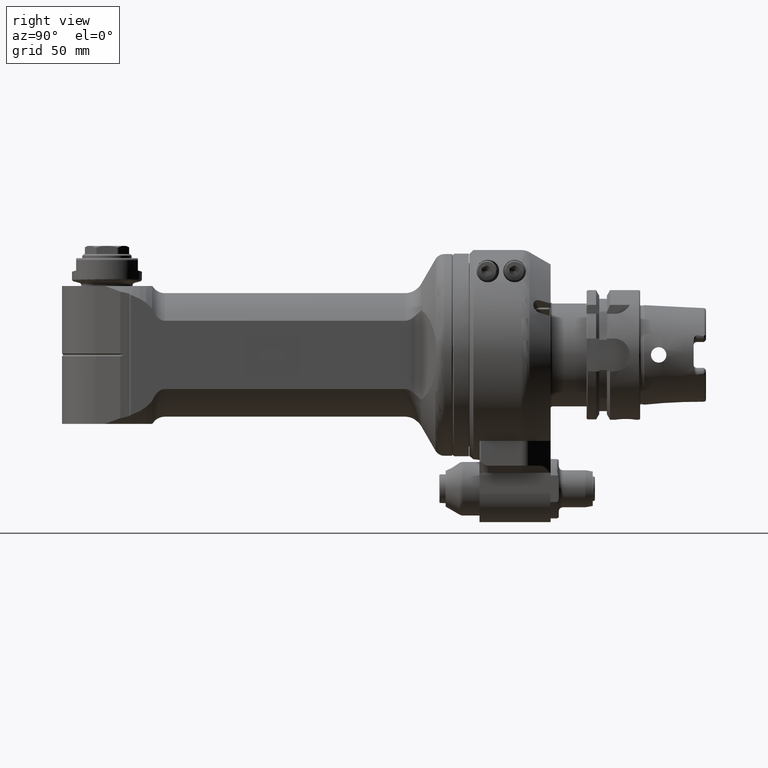
[diagram: clean part render]
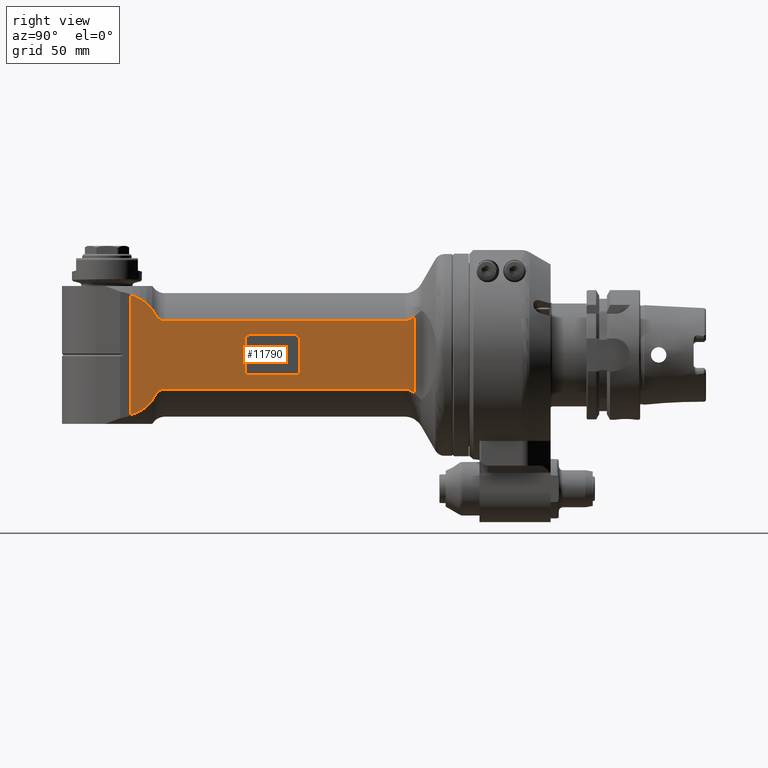
[diagram: same view with one face highlighted and labeled with its STEP entity id]
A machine part, right view. The second image highlights one B-rep face of the part: STEP entity #11790.
In plain terms, the highlighted planar face has unit normal (-1, -0, 0).
Its self-contained STEP definition (entity closure, byte-faithful):
#191=FACE_BOUND('',#1969,.T.);
#368=(
BOUNDED_CURVE()
B_SPLINE_CURVE(2,(#49864,#49865,#49866),.UNSPECIFIED.,.F.,.F.)
B_SPLINE_CURVE_WITH_KNOTS((3,3),(10.0637577830066,10.2536930074306),
 .UNSPECIFIED.)
CURVE()
GEOMETRIC_REPRESENTATION_ITEM()
RATIONAL_B_SPLINE_CURVE((1.02844065811263,1.01886281109246,1.00891330450997))
REPRESENTATION_ITEM('')
);
#369=(
BOUNDED_CURVE()
B_SPLINE_CURVE(2,(#49900,#49901,#49902),.UNSPECIFIED.,.F.,.F.)
B_SPLINE_CURVE_WITH_KNOTS((3,3),(-0.960297379361328,-0.670919033042132),
 .UNSPECIFIED.)
CURVE()
GEOMETRIC_REPRESENTATION_ITEM()
RATIONAL_B_SPLINE_CURVE((1.13764762922124,1.11967832254846,1.10003944085623))
REPRESENTATION_ITEM('')
);
#370=(
BOUNDED_CURVE()
B_SPLINE_CURVE(2,(#49903,#49904,#49905),.UNSPECIFIED.,.F.,.F.)
B_SPLINE_CURVE_WITH_KNOTS((3,3),(-0.533323682263184,-0.318404964314487),
 .UNSPECIFIED.)
CURVE()
GEOMETRIC_REPRESENTATION_ITEM()
RATIONAL_B_SPLINE_CURVE((1.06662190059773,1.05407085977907,1.04081653667434))
REPRESENTATION_ITEM('')
);
#371=(
BOUNDED_CURVE()
B_SPLINE_CURVE(2,(#49907,#49908,#49909),.UNSPECIFIED.,.F.,.F.)
B_SPLINE_CURVE_WITH_KNOTS((3,3),(0.177103908478262,0.209806670195023),
 .UNSPECIFIED.)
CURVE()
GEOMETRIC_REPRESENTATION_ITEM()
RATIONAL_B_SPLINE_CURVE((1.01355669587388,1.01479304768894,1.01602375273303))
REPRESENTATION_ITEM('')
);
#372=(
BOUNDED_CURVE()
B_SPLINE_CURVE(2,(#49913,#49914,#49915),.UNSPECIFIED.,.F.,.F.)
B_SPLINE_CURVE_WITH_KNOTS((3,3),(14.464839871622,14.4975426333388),
 .UNSPECIFIED.)
CURVE()
GEOMETRIC_REPRESENTATION_ITEM()
RATIONAL_B_SPLINE_CURVE((1.01602375273387,1.01479304768978,1.01355669587472))
REPRESENTATION_ITEM('')
);
#373=(
BOUNDED_CURVE()
B_SPLINE_CURVE(2,(#49917,#49918,#49919),.UNSPECIFIED.,.F.,.F.)
B_SPLINE_CURVE_WITH_KNOTS((3,3),(-10.2525112846873,-10.0625915574747),
 .UNSPECIFIED.)
CURVE()
GEOMETRIC_REPRESENTATION_ITEM()
RATIONAL_B_SPLINE_CURVE((1.00887622100963,1.0188253618892,1.02840285686713))
REPRESENTATION_ITEM('')
);
#374=(
BOUNDED_CURVE()
B_SPLINE_CURVE(2,(#49921,#49922,#49923),.UNSPECIFIED.,.F.,.F.)
B_SPLINE_CURVE_WITH_KNOTS((3,3),(-8.41806859416717,-8.20317088364644),
 .UNSPECIFIED.)
CURVE()
GEOMETRIC_REPRESENTATION_ITEM()
RATIONAL_B_SPLINE_CURVE((1.04076228631506,1.05401591856663,1.06656630518917))
REPRESENTATION_ITEM('')
);
#375=(
BOUNDED_CURVE()
B_SPLINE_CURVE(2,(#49925,#49926,#49927),.UNSPECIFIED.,.F.,.F.)
B_SPLINE_CURVE_WITH_KNOTS((3,3),(-7.47739673768606,-7.18805151553073),
 .UNSPECIFIED.)
CURVE()
GEOMETRIC_REPRESENTATION_ITEM()
RATIONAL_B_SPLINE_CURVE((1.09995595879571,1.11959335009201,1.137561293073))
REPRESENTATION_ITEM('')
);
#621=PLANE('',#12929);
#1272=FACE_OUTER_BOUND('',#1968,.T.);
#1968=EDGE_LOOP('',(#9918,#9919,#9920,#9921,#9922,#9923,#9924,#9925,#9926,
#9927,#9928,#9929,#9930,#9931,#9932,#9933));
#1969=EDGE_LOOP('',(#9934,#9935,#9936,#9937,#9938,#9939,#9940,#9941));
#2573=CIRCLE('',#12930,2.);
#2574=CIRCLE('',#12931,2.);
#2575=CIRCLE('',#12932,2.);
#2576=CIRCLE('',#12933,2.);
#2846=B_SPLINE_CURVE_WITH_KNOTS('',3,(#49874,#49875,#49876,#49877,#49878,
#49879,#49880,#49881),.UNSPECIFIED.,.F.,.F.,(4,2,2,4),(-3.1423743118532,
-3.00882891197884,-2.85940536172762,-2.68007420423771),.UNSPECIFIED.);
#2847=B_SPLINE_CURVE_WITH_KNOTS('',3,(#49885,#49886,#49887,#49888,#49889,
#49890,#49891,#49892,#49893,#49894,#49895,#49896,#49897,#49898),
 .UNSPECIFIED.,.F.,.F.,(4,2,2,2,2,2,4),(-3.32581351684061,-3.21328851460941,
-3.0207654607387,-2.86863153258841,-2.71649760443812,-2.60114781955608,
-2.49776209313838),.UNSPECIFIED.);
#2848=B_SPLINE_CURVE_WITH_KNOTS('',3,(#49929,#49930,#49931,#49932,#49933,
#49934,#49935,#49936,#49937,#49938,#49939,#49940,#49941,#49942),
 .UNSPECIFIED.,.F.,.F.,(4,2,2,2,2,2,4),(-2.49776209313838,-2.39437636672067,
-2.27902658183863,-2.12689265368834,-1.97475872553806,-1.78223567166734,
-1.66971066944646),.UNSPECIFIED.);
#2849=B_SPLINE_CURVE_WITH_KNOTS('',3,(#49945,#49946,#49947,#49948,#49949,
#49950,#49951,#49952),.UNSPECIFIED.,.F.,.F.,(4,2,2,4),(-3.60467441945762,
-3.42534326197877,-3.27591971172755,-3.1423743118532),.UNSPECIFIED.);
#3386=LINE('',#49872,#4284);
#3387=LINE('',#49883,#4285);
#3388=LINE('',#49911,#4286);
#3389=LINE('',#49944,#4287);
#3390=LINE('',#49955,#4288);
#3391=LINE('',#49959,#4289);
#3392=LINE('',#49963,#4290);
#3393=LINE('',#49967,#4291);
#4284=VECTOR('',#15451,37.09647208314);
#4285=VECTOR('',#15452,116.7720146362);
#4286=VECTOR('',#15453,10.);
#4287=VECTOR('',#15454,116.7720146362);
#4288=VECTOR('',#15455,22.5);
#4289=VECTOR('',#15458,15.5);
#4290=VECTOR('',#15461,22.5);
#4291=VECTOR('',#15464,15.5);
#5424=VERTEX_POINT('',#49862);
#5425=VERTEX_POINT('',#49863);
#5426=VERTEX_POINT('',#49870);
#5427=VERTEX_POINT('',#49871);
#5428=VERTEX_POINT('',#49873);
#5429=VERTEX_POINT('',#49882);
#5430=VERTEX_POINT('',#49884);
#5431=VERTEX_POINT('',#49899);
#5432=VERTEX_POINT('',#49906);
#5433=VERTEX_POINT('',#49910);
#5434=VERTEX_POINT('',#49912);
#5435=VERTEX_POINT('',#49916);
#5436=VERTEX_POINT('',#49920);
#5437=VERTEX_POINT('',#49924);
#5438=VERTEX_POINT('',#49928);
#5439=VERTEX_POINT('',#49943);
#5440=VERTEX_POINT('',#49953);
#5441=VERTEX_POINT('',#49954);
#5442=VERTEX_POINT('',#49956);
#5443=VERTEX_POINT('',#49958);
#5444=VERTEX_POINT('',#49960);
#5445=VERTEX_POINT('',#49962);
#5446=VERTEX_POINT('',#49964);
#5447=VERTEX_POINT('',#49966);
#7048=EDGE_CURVE('',#5424,#5425,#368,.T.);
#7051=EDGE_CURVE('',#5426,#5427,#3386,.T.);
#7052=EDGE_CURVE('',#5428,#5426,#2846,.T.);
#7053=EDGE_CURVE('',#5429,#5428,#3387,.T.);
#7054=EDGE_CURVE('',#5430,#5429,#2847,.T.);
#7055=EDGE_CURVE('',#5430,#5431,#369,.T.);
#7056=EDGE_CURVE('',#5431,#5424,#370,.T.);
#7057=EDGE_CURVE('',#5432,#5425,#371,.T.);
#7058=EDGE_CURVE('',#5432,#5433,#3388,.T.);
#7059=EDGE_CURVE('',#5434,#5433,#372,.T.);
#7060=EDGE_CURVE('',#5434,#5435,#373,.T.);
#7061=EDGE_CURVE('',#5435,#5436,#374,.T.);
#7062=EDGE_CURVE('',#5436,#5437,#375,.T.);
#7063=EDGE_CURVE('',#5438,#5437,#2848,.T.);
#7064=EDGE_CURVE('',#5439,#5438,#3389,.T.);
#7065=EDGE_CURVE('',#5427,#5439,#2849,.T.);
#7066=EDGE_CURVE('',#5440,#5441,#3390,.T.);
#7067=EDGE_CURVE('',#5441,#5442,#2573,.T.);
#7068=EDGE_CURVE('',#5442,#5443,#3391,.T.);
#7069=EDGE_CURVE('',#5443,#5444,#2574,.T.);
#7070=EDGE_CURVE('',#5444,#5445,#3392,.T.);
#7071=EDGE_CURVE('',#5445,#5446,#2575,.T.);
#7072=EDGE_CURVE('',#5446,#5447,#3393,.T.);
#7073=EDGE_CURVE('',#5447,#5440,#2576,.T.);
#9918=ORIENTED_EDGE('',*,*,#7051,.F.);
#9919=ORIENTED_EDGE('',*,*,#7052,.F.);
#9920=ORIENTED_EDGE('',*,*,#7053,.F.);
#9921=ORIENTED_EDGE('',*,*,#7054,.F.);
#9922=ORIENTED_EDGE('',*,*,#7055,.T.);
#9923=ORIENTED_EDGE('',*,*,#7056,.T.);
#9924=ORIENTED_EDGE('',*,*,#7048,.T.);
#9925=ORIENTED_EDGE('',*,*,#7057,.F.);
#9926=ORIENTED_EDGE('',*,*,#7058,.T.);
#9927=ORIENTED_EDGE('',*,*,#7059,.F.);
#9928=ORIENTED_EDGE('',*,*,#7060,.T.);
#9929=ORIENTED_EDGE('',*,*,#7061,.T.);
#9930=ORIENTED_EDGE('',*,*,#7062,.T.);
#9931=ORIENTED_EDGE('',*,*,#7063,.F.);
#9932=ORIENTED_EDGE('',*,*,#7064,.F.);
#9933=ORIENTED_EDGE('',*,*,#7065,.F.);
#9934=ORIENTED_EDGE('',*,*,#7066,.T.);
#9935=ORIENTED_EDGE('',*,*,#7067,.T.);
#9936=ORIENTED_EDGE('',*,*,#7068,.T.);
#9937=ORIENTED_EDGE('',*,*,#7069,.T.);
#9938=ORIENTED_EDGE('',*,*,#7070,.T.);
#9939=ORIENTED_EDGE('',*,*,#7071,.T.);
#9940=ORIENTED_EDGE('',*,*,#7072,.T.);
#9941=ORIENTED_EDGE('',*,*,#7073,.T.);
#11790=ADVANCED_FACE('',(#1272,#191),#621,.F.);
#12929=AXIS2_PLACEMENT_3D('',#49869,#15449,#15450);
#12930=AXIS2_PLACEMENT_3D('',#49957,#15456,#15457);
#12931=AXIS2_PLACEMENT_3D('',#49961,#15459,#15460);
#12932=AXIS2_PLACEMENT_3D('',#49965,#15462,#15463);
#12933=AXIS2_PLACEMENT_3D('',#49968,#15465,#15466);
#15449=DIRECTION('center_axis',(0.,0.,-1.));
#15450=DIRECTION('ref_axis',(1.,0.,0.));
#15451=DIRECTION('',(2.473728340467E-12,1.,-1.85026835222E-13));
#15452=DIRECTION('',(-1.,0.,0.));
#15453=DIRECTION('',(0.,1.,0.));
#15454=DIRECTION('',(1.,0.,0.));
#15455=DIRECTION('',(-1.,0.,0.));
#15456=DIRECTION('center_axis',(0.,0.,-1.));
#15457=DIRECTION('ref_axis',(0.,-1.,0.));
#15458=DIRECTION('',(0.,1.,0.));
#15459=DIRECTION('center_axis',(0.,0.,-1.));
#15460=DIRECTION('ref_axis',(-1.,0.,0.));
#15461=DIRECTION('',(1.,0.,0.));
#15462=DIRECTION('center_axis',(0.,0.,-1.));
#15463=DIRECTION('ref_axis',(0.,1.,0.));
#15464=DIRECTION('',(0.,-1.,0.));
#15465=DIRECTION('center_axis',(0.,0.,-1.));
#15466=DIRECTION('ref_axis',(1.,0.,0.));
#49862=CARTESIAN_POINT('',(164.073056574352,-27.2763634946847,24.9999999690271));
#49863=CARTESIAN_POINT('',(167.766276708277,-28.8832131299147,24.9999999959781));
#49864=CARTESIAN_POINT('Ctrl Pts',(164.073056589615,-27.2763634604013,25.));
#49865=CARTESIAN_POINT('Ctrl Pts',(165.866831052153,-28.066967685871,25.));
#49866=CARTESIAN_POINT('Ctrl Pts',(167.766276708876,-28.8832131285599,25.));
#49869=CARTESIAN_POINT('Origin',(118.0000000447,-58.8000024,25.));
#49870=CARTESIAN_POINT('',(30.80083019716,-18.54823604161,25.00000000003));
#49871=CARTESIAN_POINT('',(30.80083019725,18.54823604153,25.00000000002));
#49872=CARTESIAN_POINT('',(30.80083019716,-18.54823604161,25.00000000003));
#49873=CARTESIAN_POINT('',(35.16580758197,-16.58312395178,25.));
#49874=CARTESIAN_POINT('Ctrl Pts',(35.16580758197,-16.583123951777,25.));
#49875=CARTESIAN_POINT('Ctrl Pts',(34.7206562490555,-16.583123951777,25.));
#49876=CARTESIAN_POINT('Ctrl Pts',(34.1920196550243,-16.6598919965139,25.));
#49877=CARTESIAN_POINT('Ctrl Pts',(33.2844305992261,-16.9167277905047,25.));
#49878=CARTESIAN_POINT('Ctrl Pts',(32.7382766269785,-17.1595326432425,25.));
#49879=CARTESIAN_POINT('Ctrl Pts',(31.7927287076695,-17.7134498027941,25.));
#49880=CARTESIAN_POINT('Ctrl Pts',(31.2768824717342,-18.1051437661404,25.));
#49881=CARTESIAN_POINT('Ctrl Pts',(30.8008301971795,-18.5482360416309,25.));
#49882=CARTESIAN_POINT('',(151.9378222182,-16.58312395178,25.));
#49883=CARTESIAN_POINT('',(151.9378222182,-16.58312395178,25.));
#49884=CARTESIAN_POINT('',(158.000000321429,-22.2991037344406,24.9999998483583));
#49885=CARTESIAN_POINT('Ctrl Pts',(158.000000285725,-22.2991037481623,25.));
#49886=CARTESIAN_POINT('Ctrl Pts',(157.857028091733,-21.9270808407598,25.));
#49887=CARTESIAN_POINT('Ctrl Pts',(157.693594692223,-21.5500745930633,25.));
#49888=CARTESIAN_POINT('Ctrl Pts',(157.203602538318,-20.5518000895077,25.));
#49889=CARTESIAN_POINT('Ctrl Pts',(156.841829587104,-19.9481759632981,25.));
#49890=CARTESIAN_POINT('Ctrl Pts',(156.168421551287,-19.0173735566936,25.));
#49891=CARTESIAN_POINT('Ctrl Pts',(155.812224457852,-18.5891145938405,25.));
#49892=CARTESIAN_POINT('Ctrl Pts',(155.020698383631,-17.8190712330244,25.));
#49893=CARTESIAN_POINT('Ctrl Pts',(154.584391953503,-17.478292191667,25.));
#49894=CARTESIAN_POINT('Ctrl Pts',(153.815216073051,-17.0273586096957,25.));
#49895=CARTESIAN_POINT('Ctrl Pts',(153.39344890956,-16.8402713953867,25.));
#49896=CARTESIAN_POINT('Ctrl Pts',(152.691735334975,-16.6422520575151,25.));
#49897=CARTESIAN_POINT('Ctrl Pts',(152.282441306259,-16.583123951777,25.));
#49898=CARTESIAN_POINT('Ctrl Pts',(151.9378222182,-16.583123951777,25.));
#49899=CARTESIAN_POINT('',(160.856296648344,-25.2041669857564,24.9999998136784));
#49900=CARTESIAN_POINT('Ctrl Pts',(158.000000482398,-22.2991035814471,25.));
#49901=CARTESIAN_POINT('Ctrl Pts',(159.340810163007,-23.7095328932234,25.));
#49902=CARTESIAN_POINT('Ctrl Pts',(160.856296689543,-25.20416694497,25.));
#49903=CARTESIAN_POINT('Ctrl Pts',(160.856296775408,-25.2041667933682,25.));
#49904=CARTESIAN_POINT('Ctrl Pts',(162.401169707389,-26.2188286251684,25.));
#49905=CARTESIAN_POINT('Ctrl Pts',(164.073056581288,-27.2763634840492,25.));
#49906=CARTESIAN_POINT('',(168.490001510658,-29.0863635730724,24.9999993889707));
#49907=CARTESIAN_POINT('Ctrl Pts',(168.490001874596,-29.0863622745982,25.));
#49908=CARTESIAN_POINT('Ctrl Pts',(168.126871177342,-28.9845835888727,25.));
#49909=CARTESIAN_POINT('Ctrl Pts',(167.766276709667,-28.8832131250108,25.));
#49910=CARTESIAN_POINT('',(168.490001510658,29.0863635730724,24.9999993889707));
#49911=CARTESIAN_POINT('',(168.49,-29.4000012000001,25.));
#49912=CARTESIAN_POINT('',(167.766276708276,28.8832131299145,24.9999999959781));
#49913=CARTESIAN_POINT('Ctrl Pts',(167.766276709667,28.8832131250107,25.));
#49914=CARTESIAN_POINT('Ctrl Pts',(168.126871177342,28.9845835888727,25.));
#49915=CARTESIAN_POINT('Ctrl Pts',(168.490001874596,29.0863622745982,25.));
#49916=CARTESIAN_POINT('',(164.073056574353,27.2763634946851,24.999999969027));
#49917=CARTESIAN_POINT('Ctrl Pts',(167.766276708876,28.8832131285598,25.));
#49918=CARTESIAN_POINT('Ctrl Pts',(165.866831052153,28.0669676858711,25.));
#49919=CARTESIAN_POINT('Ctrl Pts',(164.073056589615,27.2763634604016,25.));
#49920=CARTESIAN_POINT('',(160.856296648275,25.2041669856787,24.9999998137002));
#49921=CARTESIAN_POINT('Ctrl Pts',(164.073056581289,27.2763634840496,25.));
#49922=CARTESIAN_POINT('Ctrl Pts',(162.401169707344,26.2188286251399,25.));
#49923=CARTESIAN_POINT('Ctrl Pts',(160.856296775324,25.204166793313,25.));
#49924=CARTESIAN_POINT('',(158.000000321384,22.2991037343406,24.999999848383));
#49925=CARTESIAN_POINT('Ctrl Pts',(160.856296689469,25.204166944897,25.));
#49926=CARTESIAN_POINT('Ctrl Pts',(159.340810162934,23.7095328931494,25.));
#49927=CARTESIAN_POINT('Ctrl Pts',(158.000000482327,22.299103581372,25.));
#49928=CARTESIAN_POINT('',(151.9378222182,16.58312395178,25.));
#49929=CARTESIAN_POINT('Ctrl Pts',(151.9378222182,16.583123951777,25.));
#49930=CARTESIAN_POINT('Ctrl Pts',(152.282441306259,16.583123951777,25.));
#49931=CARTESIAN_POINT('Ctrl Pts',(152.691735334975,16.6422520575151,25.));
#49932=CARTESIAN_POINT('Ctrl Pts',(153.39344890956,16.8402713953867,25.));
#49933=CARTESIAN_POINT('Ctrl Pts',(153.815216073051,17.0273586096957,25.));
#49934=CARTESIAN_POINT('Ctrl Pts',(154.584391953503,17.478292191667,25.));
#49935=CARTESIAN_POINT('Ctrl Pts',(155.020698383631,17.8190712330244,25.));
#49936=CARTESIAN_POINT('Ctrl Pts',(155.812224457852,18.5891145938405,25.));
#49937=CARTESIAN_POINT('Ctrl Pts',(156.168421551287,19.0173735566936,25.));
#49938=CARTESIAN_POINT('Ctrl Pts',(156.841829587104,19.9481759632981,25.));
#49939=CARTESIAN_POINT('Ctrl Pts',(157.203602538318,20.5518000895077,25.));
#49940=CARTESIAN_POINT('Ctrl Pts',(157.693594692207,21.5500745930296,25.));
#49941=CARTESIAN_POINT('Ctrl Pts',(157.857028091703,21.9270808406907,25.));
#49942=CARTESIAN_POINT('Ctrl Pts',(158.000000285685,22.29910374806,25.));
#49943=CARTESIAN_POINT('',(35.16580758197,16.58312395178,25.));
#49944=CARTESIAN_POINT('',(35.16580758197,16.58312395178,25.));
#49945=CARTESIAN_POINT('Ctrl Pts',(30.8008301972676,18.5482360415489,25.));
#49946=CARTESIAN_POINT('Ctrl Pts',(31.2768824717977,18.1051437660918,25.));
#49947=CARTESIAN_POINT('Ctrl Pts',(31.7927287077014,17.7134498027754,25.));
#49948=CARTESIAN_POINT('Ctrl Pts',(32.7382766269785,17.1595326432425,25.));
#49949=CARTESIAN_POINT('Ctrl Pts',(33.2844305992261,16.9167277905047,25.));
#49950=CARTESIAN_POINT('Ctrl Pts',(34.1920196550243,16.6598919965139,25.));
#49951=CARTESIAN_POINT('Ctrl Pts',(34.7206562490555,16.583123951777,25.));
#49952=CARTESIAN_POINT('Ctrl Pts',(35.16580758197,16.583123951777,25.));
#49953=CARTESIAN_POINT('',(111.,-9.75,25.));
#49954=CARTESIAN_POINT('',(88.5,-9.75,25.));
#49955=CARTESIAN_POINT('',(111.,-9.75,25.));
#49956=CARTESIAN_POINT('',(86.5,-7.75,25.));
#49957=CARTESIAN_POINT('Origin',(88.5,-7.75,25.));
#49958=CARTESIAN_POINT('',(86.5,7.75,25.));
#49959=CARTESIAN_POINT('',(86.5,-7.75,25.));
#49960=CARTESIAN_POINT('',(88.5,9.75,25.));
#49961=CARTESIAN_POINT('Origin',(88.5,7.75,25.));
#49962=CARTESIAN_POINT('',(111.,9.75,25.));
#49963=CARTESIAN_POINT('',(88.5,9.75,25.));
#49964=CARTESIAN_POINT('',(113.,7.75,25.));
#49965=CARTESIAN_POINT('Origin',(111.,7.75,25.));
#49966=CARTESIAN_POINT('',(113.,-7.75,25.));
#49967=CARTESIAN_POINT('',(113.,7.75,25.));
#49968=CARTESIAN_POINT('Origin',(111.,-7.75,25.));